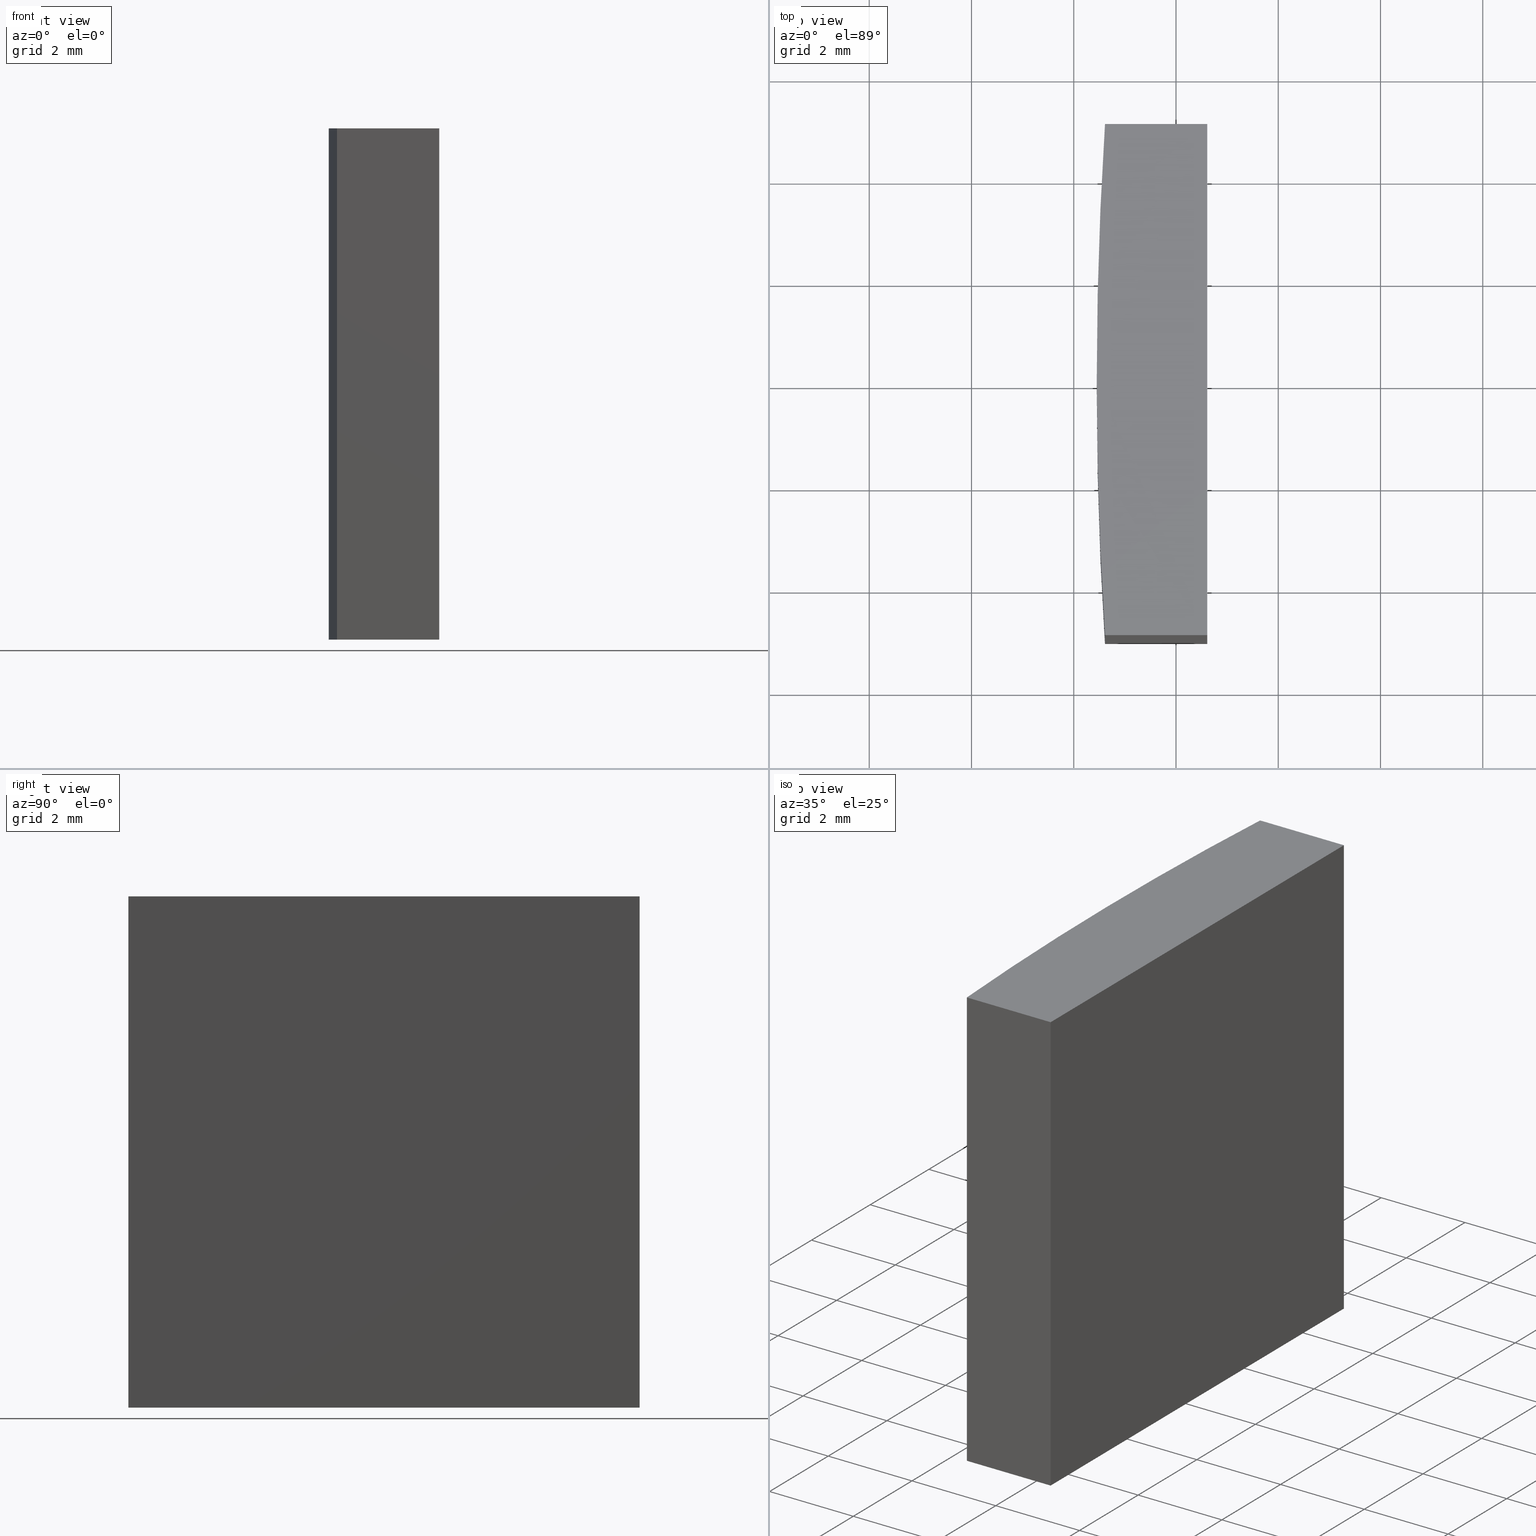
[diagram: canonical four-view strip — front | top / right | iso, engineering-drawing reading convention]
A machine part, canonical four-view strip (front | top / right | iso — engineering-drawing reading convention). The complete STEP part file that produces these views, byte-faithful:
ISO-10303-21;
HEADER;
FILE_DESCRIPTION (( 'STEP AP203' ),
    '1' );
FILE_NAME ('155523.STEP',
    '2024-05-13T03:12:56',
    ( '' ),
    ( '' ),
    'SwSTEP 2.0',
    'SolidWorks 2020',
    '' );
FILE_SCHEMA (( 'CONFIG_CONTROL_DESIGN' ));
ENDSEC;

DATA;
#1 = CYLINDRICAL_SURFACE ( 'NONE', #233, 77.54999999999999716 ) ;
#2 = CARTESIAN_POINT ( 'NONE',  ( -77.38864580802534476, 4.999999999999997335, 10.00000000000000000 ) ) ;
#3 = LINE ( 'NONE', #106, #179 ) ;
#4 = ADVANCED_FACE ( 'NONE', ( #59 ), #125, .T. ) ;
#5 = VECTOR ( 'NONE', #143, 1000.000000000000000 ) ;
#6 = DIRECTION ( 'NONE',  ( -0.000000000000000000, -0.000000000000000000, -1.000000000000000000 ) ) ;
#7 = CARTESIAN_POINT ( 'NONE',  ( -77.38864580802534476, -4.999999999999997335, 10.00000000000000000 ) ) ;
#8 = EDGE_CURVE ( 'NONE', #18, #69, #128, .T. ) ;
#9 = APPROVAL_STATUS ( 'not_yet_approved' ) ;
#10 = PERSON_AND_ORGANIZATION_ROLE ( 'design_supplier' ) ;
#11 = DIRECTION ( 'NONE',  ( 0.000000000000000000, 0.000000000000000000, 1.000000000000000000 ) ) ;
#12 = LINE ( 'NONE', #97, #5 ) ;
#13 = ORIENTED_EDGE ( 'NONE', *, *, #72, .T. ) ;
#14 = APPLICATION_CONTEXT ( 'configuration controlled 3d designs of mechanical parts and assemblies' ) ;
#15 = APPROVAL_DATE_TIME ( #162, #26 ) ;
#16 = ORIENTED_EDGE ( 'NONE', *, *, #83, .T. ) ;
#17 = ORIENTED_EDGE ( 'NONE', *, *, #231, .T. ) ;
#18 = VERTEX_POINT ( 'NONE', #2 ) ;
#19 = CC_DESIGN_SECURITY_CLASSIFICATION ( #53, ( #269 ) ) ;
#20 = VERTEX_POINT ( 'NONE', #47 ) ;
#21 = ORIENTED_EDGE ( 'NONE', *, *, #31, .F. ) ;
#22 = DIRECTION ( 'NONE',  ( 0.000000000000000000, 0.000000000000000000, 1.000000000000000000 ) ) ;
#23 = DIRECTION ( 'NONE',  ( -1.000000000000000000, -1.734723475976805517E-15, -0.000000000000000000 ) ) ;
#24 = VECTOR ( 'NONE', #152, 1000.000000000000000 ) ;
#25 = CARTESIAN_POINT ( 'NONE',  ( 0.000000000000000000, 0.000000000000000000, 10.00000000000000000 ) ) ;
#26 = APPROVAL ( #9, 'δָ��' ) ;
#27 = CARTESIAN_POINT ( 'NONE',  ( 0.000000000000000000, 0.000000000000000000, 10.00000000000000000 ) ) ;
#28 = CARTESIAN_POINT ( 'NONE',  ( -75.38864580802534476, 5.000000000000000888, 10.00000000000000000 ) ) ;
#29 = APPLICATION_CONTEXT ( 'configuration controlled 3d designs of mechanical parts and assemblies' ) ;
#30 = DIRECTION ( 'NONE',  ( 1.000000000000000000, -1.734723475976805517E-15, 0.000000000000000000 ) ) ;
#31 = EDGE_CURVE ( 'NONE', #39, #120, #3, .T. ) ;
#32 = APPROVAL_DATE_TIME ( #214, #38 ) ;
#33 = DATE_AND_TIME ( #265, #141 ) ;
#34 = CALENDAR_DATE ( 2024, 13, 5 ) ;
#35 =( LENGTH_UNIT ( ) NAMED_UNIT ( * ) SI_UNIT ( .MILLI., .METRE. ) );
#36 =( GEOMETRIC_REPRESENTATION_CONTEXT ( 3 ) GLOBAL_UNCERTAINTY_ASSIGNED_CONTEXT ( ( #157 ) ) GLOBAL_UNIT_ASSIGNED_CONTEXT ( ( #35, #119, #51 ) ) REPRESENTATION_CONTEXT ( 'NONE', 'WORKASPACE' ) );
#37 = ORIENTED_EDGE ( 'NONE', *, *, #52, .F. ) ;
#38 = APPROVAL ( #137, 'δָ��' ) ;
#39 = VERTEX_POINT ( 'NONE', #28 ) ;
#40 = ORIENTED_EDGE ( 'NONE', *, *, #31, .T. ) ;
#41 = AXIS2_PLACEMENT_3D ( 'NONE', #74, #217, #11 ) ;
#42 = DIRECTION ( 'NONE',  ( 1.000000000000000000, 0.000000000000000000, 0.000000000000000000 ) ) ;
#43 = CARTESIAN_POINT ( 'NONE',  ( -77.54999999999999716, 0.000000000000000000, 10.00000000000000000 ) ) ;
#44 = DIRECTION ( 'NONE',  ( 1.000000000000000000, 1.734723475976805517E-15, 0.000000000000000000 ) ) ;
#45 = LOCAL_TIME ( 11, 12, 56.00000000000000000, #257 ) ;
#46 = DIRECTION ( 'NONE',  ( -0.000000000000000000, -0.000000000000000000, -1.000000000000000000 ) ) ;
#47 = CARTESIAN_POINT ( 'NONE',  ( -75.38864580802534476, -5.000000000000000888, 10.00000000000000000 ) ) ;
#48 = VECTOR ( 'NONE', #30, 1000.000000000000000 ) ;
#49 = PERSON_AND_ORGANIZATION ( #90, #254 ) ;
#50 = APPROVAL_ROLE ( '' ) ;
#51 =( NAMED_UNIT ( * ) SI_UNIT ( $, .STERADIAN. ) SOLID_ANGLE_UNIT ( ) );
#52 = EDGE_CURVE ( 'NONE', #189, #100, #211, .T. ) ;
#53 = SECURITY_CLASSIFICATION ( '', '', #73 ) ;
#54 = APPLICATION_PROTOCOL_DEFINITION ( 'international standard', 'config_control_design', 1994, #29 ) ;
#55 = EDGE_CURVE ( 'NONE', #69, #100, #75, .T. ) ;
#56 = ORIENTED_EDGE ( 'NONE', *, *, #239, .F. ) ;
#57 = AXIS2_PLACEMENT_3D ( 'NONE', #229, #252, #42 ) ;
#58 = ORIENTED_EDGE ( 'NONE', *, *, #204, .F. ) ;
#59 = FACE_OUTER_BOUND ( 'NONE', #245, .T. ) ;
#60 = CARTESIAN_POINT ( 'NONE',  ( -75.38864580802534476, 5.000000000000000888, 0.000000000000000000 ) ) ;
#61 = PLANE ( 'NONE',  #208 ) ;
#62 = DIRECTION ( 'NONE',  ( 0.000000000000000000, 0.000000000000000000, 1.000000000000000000 ) ) ;
#63 = FACE_OUTER_BOUND ( 'NONE', #167, .T. ) ;
#64 = APPROVAL_PERSON_ORGANIZATION ( #121, #38, #155 ) ;
#65 = CIRCLE ( 'NONE', #123, 77.54999999999999716 ) ;
#66 = CARTESIAN_POINT ( 'NONE',  ( -77.54999999999999716, 0.000000000000000000, 10.00000000000000000 ) ) ;
#67 = DATE_AND_TIME ( #34, #45 ) ;
#68 = FACE_OUTER_BOUND ( 'NONE', #268, .T. ) ;
#69 = VERTEX_POINT ( 'NONE', #234 ) ;
#70 = PERSON_AND_ORGANIZATION_ROLE ( 'classification_officer' ) ;
#71 = CARTESIAN_POINT ( 'NONE',  ( 0.000000000000000000, 0.000000000000000000, 0.000000000000000000 ) ) ;
#72 = EDGE_CURVE ( 'NONE', #39, #18, #273, .T. ) ;
#73 = SECURITY_CLASSIFICATION_LEVEL ( 'unclassified' ) ;
#74 = CARTESIAN_POINT ( 'NONE',  ( -75.38864580802534476, 5.000000000000000888, 10.00000000000000000 ) ) ;
#75 = CIRCLE ( 'NONE', #57, 77.54999999999999716 ) ;
#76 = CALENDAR_DATE ( 2024, 13, 5 ) ;
#77 = EDGE_CURVE ( 'NONE', #264, #20, #209, .T. ) ;
#78 = ORIENTED_EDGE ( 'NONE', *, *, #55, .T. ) ;
#79 = DIRECTION ( 'NONE',  ( -1.000000000000000000, 0.000000000000000000, 0.000000000000000000 ) ) ;
#80 = ADVANCED_FACE ( 'NONE', ( #210 ), #61, .F. ) ;
#81 = EDGE_LOOP ( 'NONE', ( #17, #169, #145, #224, #13 ) ) ;
#82 = CARTESIAN_POINT ( 'NONE',  ( 0.000000000000000000, 0.000000000000000000, 0.000000000000000000 ) ) ;
#83 = EDGE_CURVE ( 'NONE', #20, #144, #206, .T. ) ;
#84 = CARTESIAN_POINT ( 'NONE',  ( -75.38864580802534476, -5.000000000000000888, 0.000000000000000000 ) ) ;
#85 = CARTESIAN_POINT ( 'NONE',  ( -77.38864580802534476, -4.999999999999997335, 10.00000000000000000 ) ) ;
#86 = LINE ( 'NONE', #249, #171 ) ;
#87 = VECTOR ( 'NONE', #205, 1000.000000000000000 ) ;
#88 = CC_DESIGN_APPROVAL ( #105, ( #53 ) ) ;
#89 = COORDINATED_UNIVERSAL_TIME_OFFSET ( 8, 0, .AHEAD. ) ;
#90 = PERSON ( 'δָ��', 'δָ��', 'δָ��', ('δָ��'), ('δָ��'), ('δָ��') ) ;
#91 = DIRECTION ( 'NONE',  ( 1.000000000000000000, 0.000000000000000000, 0.000000000000000000 ) ) ;
#92 = EDGE_LOOP ( 'NONE', ( #270, #104, #180, #188, #56 ) ) ;
#93 = CC_DESIGN_APPROVAL ( #38, ( #218 ) ) ;
#94 = COORDINATED_UNIVERSAL_TIME_OFFSET ( 8, 0, .AHEAD. ) ;
#95 = ADVANCED_FACE ( 'NONE', ( #172 ), #1, .T. ) ;
#96 = DATE_TIME_ROLE ( 'classification_date' ) ;
#97 = CARTESIAN_POINT ( 'NONE',  ( -75.38864580802534476, 5.000000000000000888, 10.00000000000000000 ) ) ;
#98 = PERSON_AND_ORGANIZATION ( #90, #254 ) ;
#99 = SHAPE_DEFINITION_REPRESENTATION ( #244, #129 ) ;
#100 = VERTEX_POINT ( 'NONE', #251 ) ;
#101 = ORIENTED_EDGE ( 'NONE', *, *, #52, .T. ) ;
#102 = ORIENTED_EDGE ( 'NONE', *, *, #8, .T. ) ;
#103 = CIRCLE ( 'NONE', #187, 77.54999999999999716 ) ;
#104 = ORIENTED_EDGE ( 'NONE', *, *, #107, .F. ) ;
#105 = APPROVAL ( #243, 'δָ��' ) ;
#106 = CARTESIAN_POINT ( 'NONE',  ( -75.38864580802534476, 5.000000000000000888, 10.00000000000000000 ) ) ;
#107 = EDGE_CURVE ( 'NONE', #120, #69, #86, .T. ) ;
#108 = FACE_OUTER_BOUND ( 'NONE', #81, .T. ) ;
#109 = DIRECTION ( 'NONE',  ( -0.000000000000000000, 1.000000000000000000, -0.000000000000000000 ) ) ;
#110 = DIRECTION ( 'NONE',  ( 1.734723475976805517E-15, -1.000000000000000000, 0.000000000000000000 ) ) ;
#111 = DIRECTION ( 'NONE',  ( -0.000000000000000000, -0.000000000000000000, -1.000000000000000000 ) ) ;
#112 = AXIS2_PLACEMENT_3D ( 'NONE', #201, #190, #79 ) ;
#113 = EDGE_CURVE ( 'NONE', #264, #184, #230, .T. ) ;
#114 = DIRECTION ( 'NONE',  ( 1.000000000000000000, 0.000000000000000000, 0.000000000000000000 ) ) ;
#115 = MANIFOLD_SOLID_BREP ( '͹̨-����1', #247 ) ;
#116 = PERSON_AND_ORGANIZATION_ROLE ( 'creator' ) ;
#117 = APPROVAL_DATE_TIME ( #33, #105 ) ;
#118 = VECTOR ( 'NONE', #174, 1000.000000000000000 ) ;
#119 =( NAMED_UNIT ( * ) PLANE_ANGLE_UNIT ( ) SI_UNIT ( $, .RADIAN. ) );
#120 = VERTEX_POINT ( 'NONE', #60 ) ;
#121 = PERSON_AND_ORGANIZATION ( #90, #254 ) ;
#122 = PERSON_AND_ORGANIZATION ( #90, #254 ) ;
#123 = AXIS2_PLACEMENT_3D ( 'NONE', #236, #139, #91 ) ;
#124 = EDGE_LOOP ( 'NONE', ( #272, #202, #225, #40 ) ) ;
#125 = CYLINDRICAL_SURFACE ( 'NONE', #112, 77.54999999999999716 ) ;
#126 = ADVANCED_FACE ( 'NONE', ( #232 ), #149, .F. ) ;
#127 = CIRCLE ( 'NONE', #166, 77.54999999999999716 ) ;
#128 = LINE ( 'NONE', #148, #212 ) ;
#129 = ADVANCED_BREP_SHAPE_REPRESENTATION ( '155523', ( #115, #260 ), #36 ) ;
#130 = CC_DESIGN_PERSON_AND_ORGANIZATION_ASSIGNMENT ( #215, #70, ( #53 ) ) ;
#131 = CARTESIAN_POINT ( 'NONE',  ( 0.000000000000000000, 0.000000000000000000, 10.00000000000000000 ) ) ;
#132 = LINE ( 'NONE', #147, #240 ) ;
#133 = CARTESIAN_POINT ( 'NONE',  ( -77.38864580802534476, 4.999999999999997335, 10.00000000000000000 ) ) ;
#134 = EDGE_CURVE ( 'NONE', #189, #264, #127, .T. ) ;
#135 = CARTESIAN_POINT ( 'NONE',  ( -77.38864580802534476, 4.999999999999997335, 10.00000000000000000 ) ) ;
#136 = DATE_TIME_ROLE ( 'creation_date' ) ;
#137 = APPROVAL_STATUS ( 'not_yet_approved' ) ;
#138 = APPROVAL_ROLE ( '' ) ;
#139 = DIRECTION ( 'NONE',  ( 0.000000000000000000, 0.000000000000000000, 1.000000000000000000 ) ) ;
#140 = LINE ( 'NONE', #153, #48 ) ;
#141 = LOCAL_TIME ( 11, 12, 56.00000000000000000, #182 ) ;
#142 = CALENDAR_DATE ( 2024, 13, 5 ) ;
#143 = DIRECTION ( 'NONE',  ( -0.000000000000000000, 1.000000000000000000, -0.000000000000000000 ) ) ;
#144 = VERTEX_POINT ( 'NONE', #84 ) ;
#145 = ORIENTED_EDGE ( 'NONE', *, *, #77, .T. ) ;
#146 = AXIS2_PLACEMENT_3D ( 'NONE', #25, #62, #256 ) ;
#147 = CARTESIAN_POINT ( 'NONE',  ( -75.38864580802534476, 5.000000000000000888, 0.000000000000000000 ) ) ;
#148 = CARTESIAN_POINT ( 'NONE',  ( -77.38864580802534476, 4.999999999999997335, 10.00000000000000000 ) ) ;
#149 = PLANE ( 'NONE',  #159 ) ;
#150 = PLANE ( 'NONE',  #41 ) ;
#151 = CC_DESIGN_PERSON_AND_ORGANIZATION_ASSIGNMENT ( #263, #10, ( #269 ) ) ;
#152 = DIRECTION ( 'NONE',  ( -1.000000000000000000, -1.734723475976805517E-15, -0.000000000000000000 ) ) ;
#153 = CARTESIAN_POINT ( 'NONE',  ( -77.38864580802534476, -4.999999999999997335, 0.000000000000000000 ) ) ;
#154 = CC_DESIGN_PERSON_AND_ORGANIZATION_ASSIGNMENT ( #49, #197, ( #266 ) ) ;
#155 = APPROVAL_ROLE ( '' ) ;
#156 = DIRECTION ( 'NONE',  ( -1.000000000000000000, 1.734723475976805517E-15, 0.000000000000000000 ) ) ;
#157 = UNCERTAINTY_MEASURE_WITH_UNIT (LENGTH_MEASURE( 1.000000000000000082E-05 ), #35, 'distance_accuracy_value', 'NONE');
#158 = CARTESIAN_POINT ( 'NONE',  ( -77.38864580802534476, -4.999999999999997335, 10.00000000000000000 ) ) ;
#159 = AXIS2_PLACEMENT_3D ( 'NONE', #133, #110, #44 ) ;
#160 = CC_DESIGN_APPROVAL ( #26, ( #269 ) ) ;
#161 = ADVANCED_FACE ( 'NONE', ( #108 ), #173, .T. ) ;
#162 = DATE_AND_TIME ( #76, #203 ) ;
#163 = ORIENTED_EDGE ( 'NONE', *, *, #113, .F. ) ;
#164 = CC_DESIGN_DATE_AND_TIME_ASSIGNMENT ( #67, #136, ( #218 ) ) ;
#165 = ORIENTED_EDGE ( 'NONE', *, *, #77, .F. ) ;
#166 = AXIS2_PLACEMENT_3D ( 'NONE', #131, #177, #195 ) ;
#167 = EDGE_LOOP ( 'NONE', ( #222, #21, #58, #16 ) ) ;
#168 = DESIGN_CONTEXT ( 'detailed design', #29, 'design' ) ;
#169 = ORIENTED_EDGE ( 'NONE', *, *, #134, .T. ) ;
#170 = DIRECTION ( 'NONE',  ( -1.000000000000000000, 0.000000000000000000, 0.000000000000000000 ) ) ;
#171 = VECTOR ( 'NONE', #23, 1000.000000000000000 ) ;
#172 = FACE_OUTER_BOUND ( 'NONE', #259, .T. ) ;
#173 = PLANE ( 'NONE',  #146 ) ;
#174 = DIRECTION ( 'NONE',  ( -0.000000000000000000, -0.000000000000000000, -1.000000000000000000 ) ) ;
#175 = EDGE_CURVE ( 'NONE', #144, #120, #132, .T. ) ;
#176 = VECTOR ( 'NONE', #46, 1000.000000000000000 ) ;
#177 = DIRECTION ( 'NONE',  ( 0.000000000000000000, 0.000000000000000000, 1.000000000000000000 ) ) ;
#178 = PERSON_AND_ORGANIZATION ( #90, #254 ) ;
#179 = VECTOR ( 'NONE', #111, 1000.000000000000000 ) ;
#180 = ORIENTED_EDGE ( 'NONE', *, *, #175, .F. ) ;
#181 = CALENDAR_DATE ( 2024, 13, 5 ) ;
#182 = COORDINATED_UNIVERSAL_TIME_OFFSET ( 8, 0, .AHEAD. ) ;
#183 = DIRECTION ( 'NONE',  ( 0.000000000000000000, 0.000000000000000000, 1.000000000000000000 ) ) ;
#184 = VERTEX_POINT ( 'NONE', #253 ) ;
#185 = DATE_AND_TIME ( #142, #242 ) ;
#186 = PERSON_AND_ORGANIZATION_ROLE ( 'creator' ) ;
#187 = AXIS2_PLACEMENT_3D ( 'NONE', #213, #183, #241 ) ;
#188 = ORIENTED_EDGE ( 'NONE', *, *, #227, .F. ) ;
#189 = VERTEX_POINT ( 'NONE', #66 ) ;
#190 = DIRECTION ( 'NONE',  ( -0.000000000000000000, -0.000000000000000000, -1.000000000000000000 ) ) ;
#191 = ORIENTED_EDGE ( 'NONE', *, *, #231, .F. ) ;
#192 = CARTESIAN_POINT ( 'NONE',  ( -75.38864580802534476, -5.000000000000000888, 10.00000000000000000 ) ) ;
#193 = DIRECTION ( 'NONE',  ( -0.000000000000000000, -0.000000000000000000, -1.000000000000000000 ) ) ;
#194 = CARTESIAN_POINT ( 'NONE',  ( -77.38864580802534476, -4.999999999999997335, 10.00000000000000000 ) ) ;
#195 = DIRECTION ( 'NONE',  ( 1.000000000000000000, 0.000000000000000000, 0.000000000000000000 ) ) ;
#196 = DIRECTION ( 'NONE',  ( 1.000000000000000000, 0.000000000000000000, -0.000000000000000000 ) ) ;
#197 = PERSON_AND_ORGANIZATION_ROLE ( 'design_owner' ) ;
#198 = CC_DESIGN_PERSON_AND_ORGANIZATION_ASSIGNMENT ( #98, #186, ( #269 ) ) ;
#199 = ADVANCED_FACE ( 'NONE', ( #63 ), #150, .F. ) ;
#200 = ORIENTED_EDGE ( 'NONE', *, *, #113, .T. ) ;
#201 = CARTESIAN_POINT ( 'NONE',  ( 0.000000000000000000, 0.000000000000000000, 10.00000000000000000 ) ) ;
#202 = ORIENTED_EDGE ( 'NONE', *, *, #8, .F. ) ;
#203 = LOCAL_TIME ( 11, 12, 56.00000000000000000, #267 ) ;
#204 = EDGE_CURVE ( 'NONE', #20, #39, #12, .T. ) ;
#205 = DIRECTION ( 'NONE',  ( 1.000000000000000000, -1.734723475976805517E-15, 0.000000000000000000 ) ) ;
#206 = LINE ( 'NONE', #192, #228 ) ;
#207 = CC_DESIGN_PERSON_AND_ORGANIZATION_ASSIGNMENT ( #178, #116, ( #218 ) ) ;
#208 = AXIS2_PLACEMENT_3D ( 'NONE', #82, #22, #196 ) ;
#209 = LINE ( 'NONE', #194, #87 ) ;
#210 = FACE_OUTER_BOUND ( 'NONE', #92, .T. ) ;
#211 = LINE ( 'NONE', #43, #118 ) ;
#212 = VECTOR ( 'NONE', #235, 1000.000000000000000 ) ;
#213 = CARTESIAN_POINT ( 'NONE',  ( 0.000000000000000000, 0.000000000000000000, 10.00000000000000000 ) ) ;
#214 = DATE_AND_TIME ( #181, #223 ) ;
#215 = PERSON_AND_ORGANIZATION ( #90, #254 ) ;
#216 = CC_DESIGN_DATE_AND_TIME_ASSIGNMENT ( #185, #96, ( #53 ) ) ;
#217 = DIRECTION ( 'NONE',  ( -1.000000000000000000, 0.000000000000000000, 0.000000000000000000 ) ) ;
#218 = PRODUCT_DEFINITION ( 'δ֪', '', #269, #168 ) ;
#219 = APPROVAL_PERSON_ORGANIZATION ( #238, #26, #50 ) ;
#220 = PLANE ( 'NONE',  #274 ) ;
#221 = MECHANICAL_CONTEXT ( 'NONE', #14, 'mechanical' ) ;
#222 = ORIENTED_EDGE ( 'NONE', *, *, #175, .T. ) ;
#223 = LOCAL_TIME ( 11, 12, 56.00000000000000000, #89 ) ;
#224 = ORIENTED_EDGE ( 'NONE', *, *, #204, .T. ) ;
#225 = ORIENTED_EDGE ( 'NONE', *, *, #72, .F. ) ;
#226 = ORIENTED_EDGE ( 'NONE', *, *, #134, .F. ) ;
#227 = EDGE_CURVE ( 'NONE', #184, #144, #140, .T. ) ;
#228 = VECTOR ( 'NONE', #6, 1000.000000000000000 ) ;
#229 = CARTESIAN_POINT ( 'NONE',  ( 0.000000000000000000, 0.000000000000000000, 0.000000000000000000 ) ) ;
#230 = LINE ( 'NONE', #85, #176 ) ;
#231 = EDGE_CURVE ( 'NONE', #18, #189, #103, .T. ) ;
#232 = FACE_OUTER_BOUND ( 'NONE', #124, .T. ) ;
#233 = AXIS2_PLACEMENT_3D ( 'NONE', #27, #193, #170 ) ;
#234 = CARTESIAN_POINT ( 'NONE',  ( -77.38864580802534476, 4.999999999999997335, 0.000000000000000000 ) ) ;
#235 = DIRECTION ( 'NONE',  ( -0.000000000000000000, -0.000000000000000000, -1.000000000000000000 ) ) ;
#236 = CARTESIAN_POINT ( 'NONE',  ( 0.000000000000000000, 0.000000000000000000, 0.000000000000000000 ) ) ;
#237 = DIRECTION ( 'NONE',  ( 1.734723475976805517E-15, 1.000000000000000000, -0.000000000000000000 ) ) ;
#238 = PERSON_AND_ORGANIZATION ( #90, #254 ) ;
#239 = EDGE_CURVE ( 'NONE', #100, #184, #65, .T. ) ;
#240 = VECTOR ( 'NONE', #109, 1000.000000000000000 ) ;
#241 = DIRECTION ( 'NONE',  ( 1.000000000000000000, 0.000000000000000000, 0.000000000000000000 ) ) ;
#242 = LOCAL_TIME ( 11, 12, 56.00000000000000000, #94 ) ;
#243 = APPROVAL_STATUS ( 'not_yet_approved' ) ;
#244 = PRODUCT_DEFINITION_SHAPE ( 'NONE', 'NONE',  #218 ) ;
#245 = EDGE_LOOP ( 'NONE', ( #37, #191, #102, #78 ) ) ;
#246 = ORIENTED_EDGE ( 'NONE', *, *, #83, .F. ) ;
#247 = CLOSED_SHELL ( 'NONE', ( #95, #4, #250, #199, #126, #161, #80 ) ) ;
#248 = ORIENTED_EDGE ( 'NONE', *, *, #239, .T. ) ;
#249 = CARTESIAN_POINT ( 'NONE',  ( -77.38864580802534476, 4.999999999999997335, 0.000000000000000000 ) ) ;
#250 = ADVANCED_FACE ( 'NONE', ( #68 ), #220, .F. ) ;
#251 = CARTESIAN_POINT ( 'NONE',  ( -77.54999999999999716, 0.000000000000000000, 0.000000000000000000 ) ) ;
#252 = DIRECTION ( 'NONE',  ( 0.000000000000000000, 0.000000000000000000, 1.000000000000000000 ) ) ;
#253 = CARTESIAN_POINT ( 'NONE',  ( -77.38864580802534476, -4.999999999999997335, 0.000000000000000000 ) ) ;
#254 = ORGANIZATION ( 'δָ��', 'δָ��', '' ) ;
#255 = APPROVAL_PERSON_ORGANIZATION ( #122, #105, #138 ) ;
#256 = DIRECTION ( 'NONE',  ( 1.000000000000000000, 0.000000000000000000, -0.000000000000000000 ) ) ;
#257 = COORDINATED_UNIVERSAL_TIME_OFFSET ( 8, 0, .AHEAD. ) ;
#258 = APPLICATION_PROTOCOL_DEFINITION ( 'international standard', 'config_control_design', 1994, #14 ) ;
#259 = EDGE_LOOP ( 'NONE', ( #226, #101, #248, #163 ) ) ;
#260 = AXIS2_PLACEMENT_3D ( 'NONE', #71, #261, #114 ) ;
#261 = DIRECTION ( 'NONE',  ( 0.000000000000000000, 0.000000000000000000, 1.000000000000000000 ) ) ;
#262 = PRODUCT_RELATED_PRODUCT_CATEGORY ( 'detail', '', ( #266 ) ) ;
#263 = PERSON_AND_ORGANIZATION ( #90, #254 ) ;
#264 = VERTEX_POINT ( 'NONE', #158 ) ;
#265 = CALENDAR_DATE ( 2024, 13, 5 ) ;
#266 = PRODUCT ( '155523', '155523', '', ( #221 ) ) ;
#267 = COORDINATED_UNIVERSAL_TIME_OFFSET ( 8, 0, .AHEAD. ) ;
#268 = EDGE_LOOP ( 'NONE', ( #271, #246, #165, #200 ) ) ;
#269 = PRODUCT_DEFINITION_FORMATION_WITH_SPECIFIED_SOURCE ( '�κ�', '', #266, .NOT_KNOWN. ) ;
#270 = ORIENTED_EDGE ( 'NONE', *, *, #55, .F. ) ;
#271 = ORIENTED_EDGE ( 'NONE', *, *, #227, .T. ) ;
#272 = ORIENTED_EDGE ( 'NONE', *, *, #107, .T. ) ;
#273 = LINE ( 'NONE', #135, #24 ) ;
#274 = AXIS2_PLACEMENT_3D ( 'NONE', #7, #237, #156 ) ;
ENDSEC;
END-ISO-10303-21;
